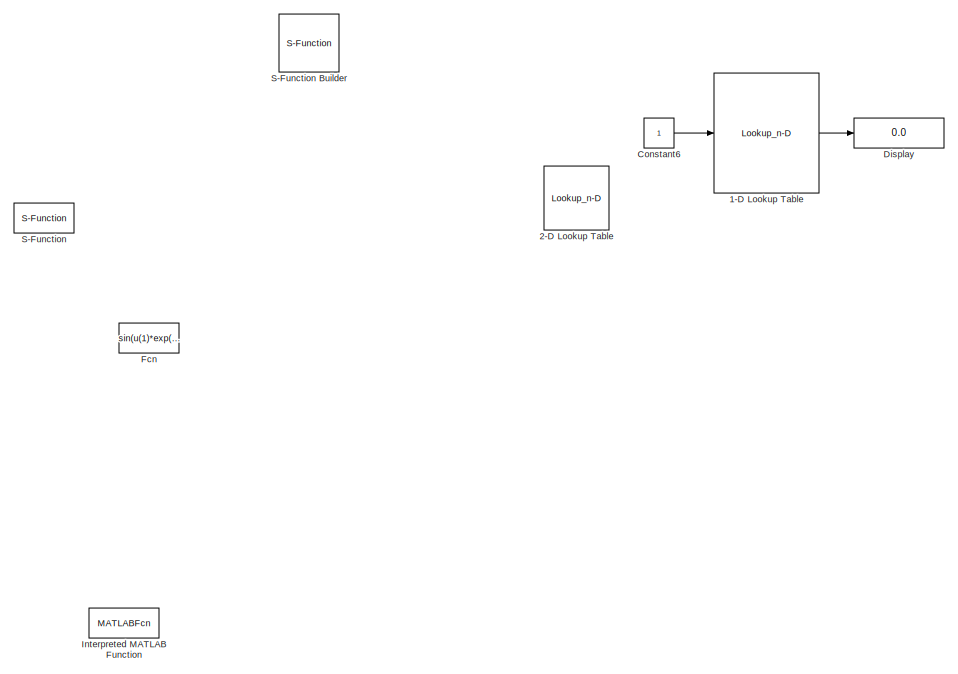
[diagram: root canvas - part 1/3, top left region]
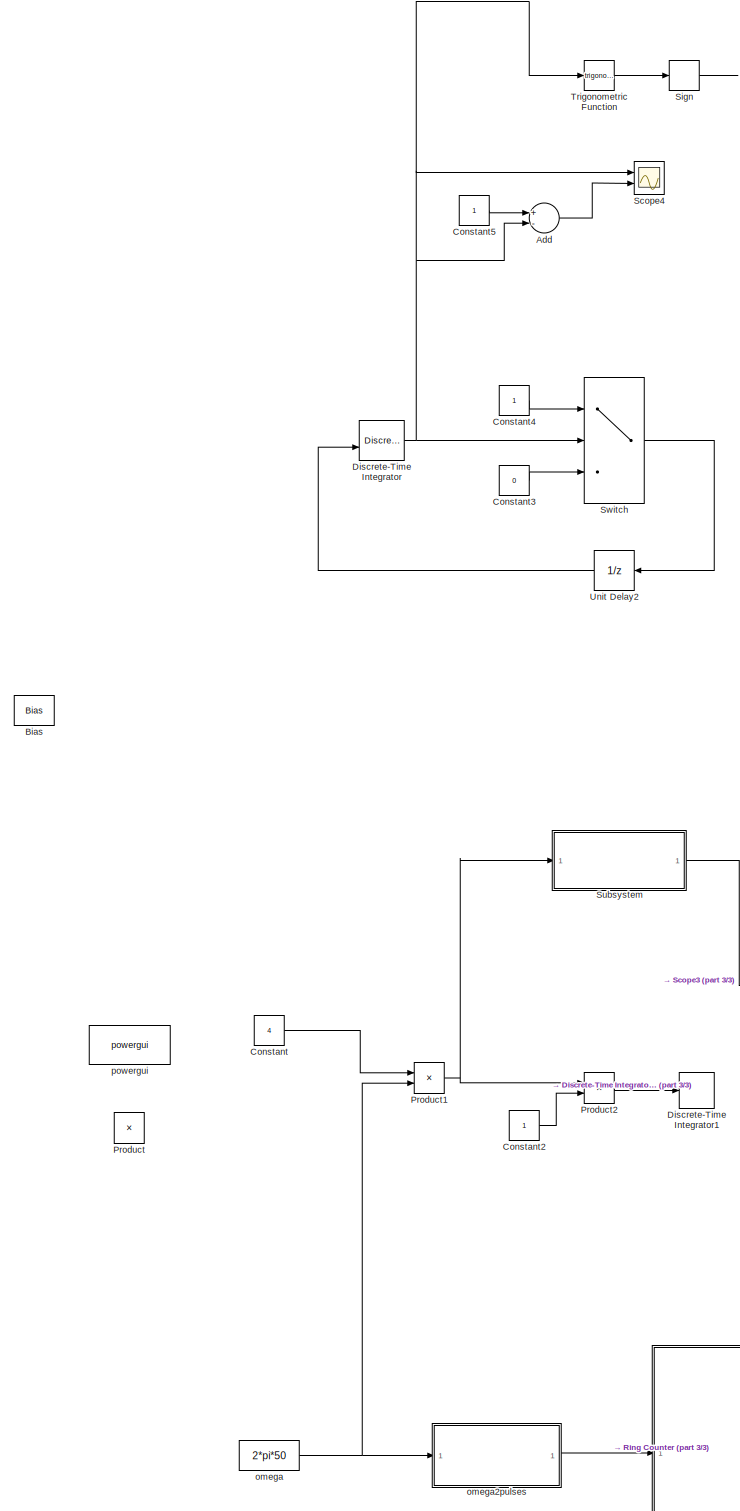
[diagram: root canvas - part 2/3, central region]
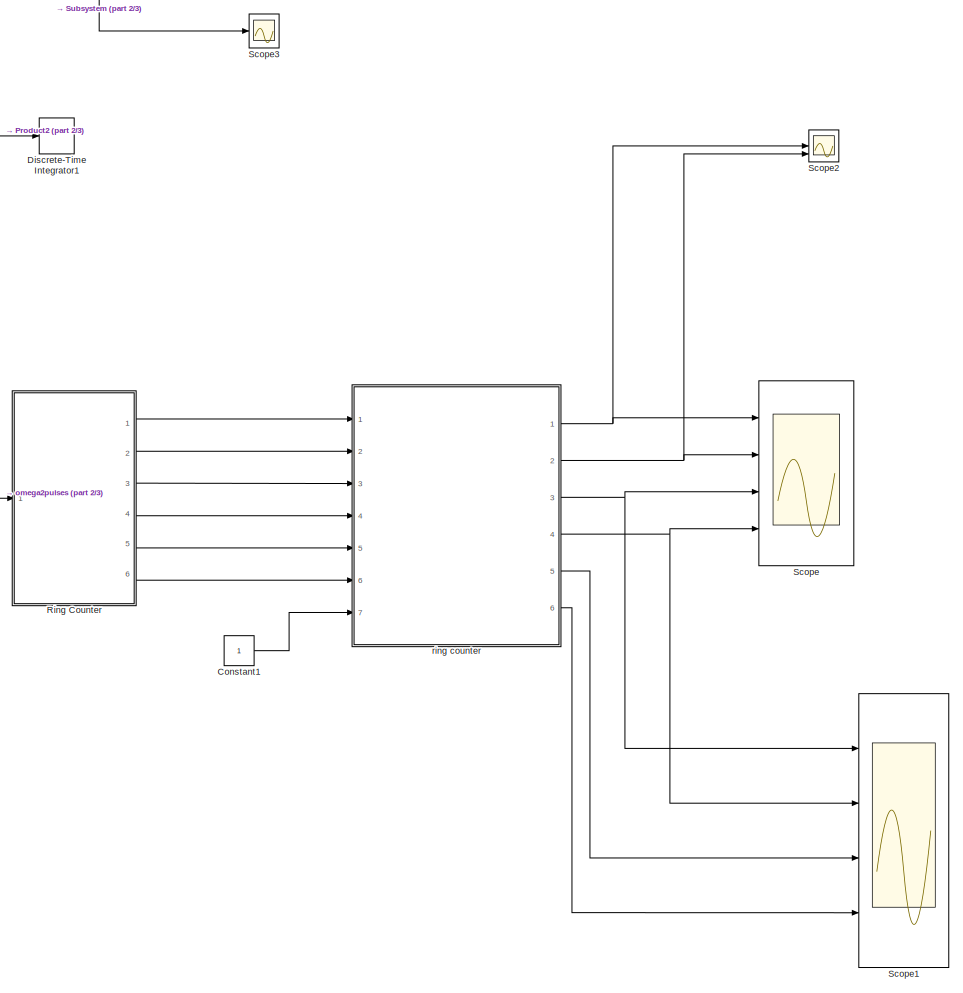
[diagram: root canvas - part 3/3, bottom right region]
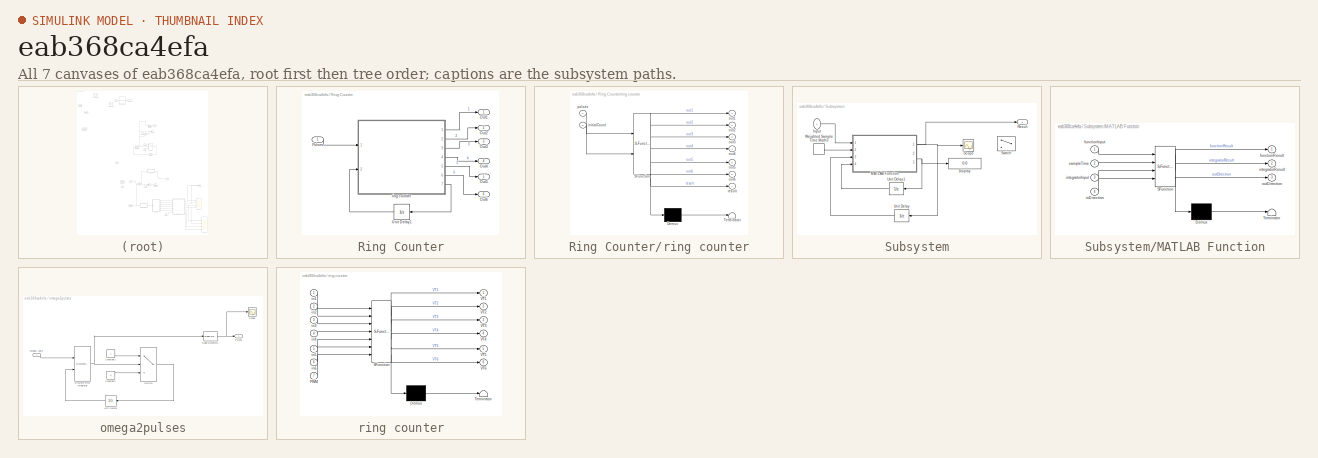
[diagram: thumbnail index - all 7 canvases of the model, root first then tree order]
MODEL slx_eab368ca4efa
KIND model
CONFIG AbsTol = auto
CONFIG EnableMultiTasking = off
CONFIG FixedStep = 2e-6
CONFIG MaxStep = 1e-4
CONFIG MinStep = auto
CONFIG RelTol = 1e-3
CONFIG SampleTimeConstraint = Unconstrained
CONFIG Solver = FixedStepDiscrete
CONFIG SolverName = FixedStepDiscrete
CONFIG StartTime = 0.0
CONFIG StopTime = 0.1
BLOCK [Lookup_n-D] 1-D Lookup Table
  BreakpointsForDimension1 = [1:5]
  Commented = through
  InternalRulePriority = Speed
  NumberOfTableDimensions = 1
  Ports = [1, 1]
  RndMeth = Simplest
  Table = [2:10]
BLOCK [Lookup_n-D] 2-D Lookup Table
  BreakpointsForDimension1 = [1:3]
  BreakpointsForDimension2 = [1:3]
  InternalRulePriority = Speed
  Ports = [2, 1]
  RndMeth = Simplest
BLOCK [Sum] Add
  InputSameDT = off
  Inputs = +-
  OutDataTypeStr = Inherit: Inherit via internal rule
  Ports = [2, 1]
  SaturateOnIntegerOverflow = off
BLOCK [Bias] Bias
  Bias = 0.0
  SaturateOnIntegerOverflow = off
BLOCK [Constant] Constant
  Value = 4
BLOCK [Constant] Constant1
BLOCK [Constant] Constant2
BLOCK [Constant] Constant3
  Value = 0
BLOCK [Constant] Constant4
BLOCK [Constant] Constant5
BLOCK [Constant] Constant6
BLOCK [DiscreteIntegrator] Discrete-Time Integrator
  ExternalReset = rising
  ICPrevOutput = DiscIntNeverNeededParam
  ICPrevScaledInput = DiscIntNeverNeededParam
  InitialConditionSetting = State (most efficient)
  Ports = [2, 1]
  SampleTime = -1
  gainval = 1
BLOCK [DiscreteIntegrator] Discrete-Time Integrator1
  ICPrevOutput = DiscIntNeverNeededParam
  ICPrevScaledInput = DiscIntNeverNeededParam
  InitialConditionSetting = State (most efficient)
  Ports = [1, 1]
  SampleTime = -1
  gainval = 1
BLOCK [Display] Display
  Decimation = 1
  Ports = [1]
BLOCK [Fcn] Fcn
  Expr = sin(u(1)*exp(2.3*(-u(2))))
BLOCK [MATLABFcn] Interpreted MATLAB Function
  Ports = [1, 1]
BLOCK [Product] Product
  InputSameDT = off
  OutDataTypeStr = Inherit: Inherit via internal rule
  Ports = [2, 1]
  RndMeth = Floor
  SaturateOnIntegerOverflow = off
BLOCK [Product] Product1
  InputSameDT = off
  OutDataTypeStr = Inherit: Inherit via internal rule
  Ports = [2, 1]
  RndMeth = Floor
  SaturateOnIntegerOverflow = off
BLOCK [Product] Product2
  InputSameDT = off
  OutDataTypeStr = Inherit: Inherit via internal rule
  Ports = [2, 1]
  RndMeth = Floor
  SaturateOnIntegerOverflow = off
BLOCK [SubSystem] Ring Counter
  Ports = [1, 6]
  RequestExecContextInheritance = off
  Variant = off
BLOCK [Outport] Ring Counter/Out1
  IconDisplay = Port number
BLOCK [Outport] Ring Counter/Out2
  IconDisplay = Port number
  Port = 2
BLOCK [Outport] Ring Counter/Out3
  IconDisplay = Port number
  Port = 3
BLOCK [Outport] Ring Counter/Out4
  IconDisplay = Port number
  Port = 4
BLOCK [Outport] Ring Counter/Out5
  IconDisplay = Port number
  Port = 5
BLOCK [Outport] Ring Counter/Out6
  IconDisplay = Port number
  Port = 6
BLOCK [Inport] Ring Counter/Pulses
  IconDisplay = Port number
BLOCK [UnitDelay] Ring Counter/Unit Delay1
  InitialCondition = 1
  InputProcessing = Elements as channels (sample based)
  SampleTime = -1
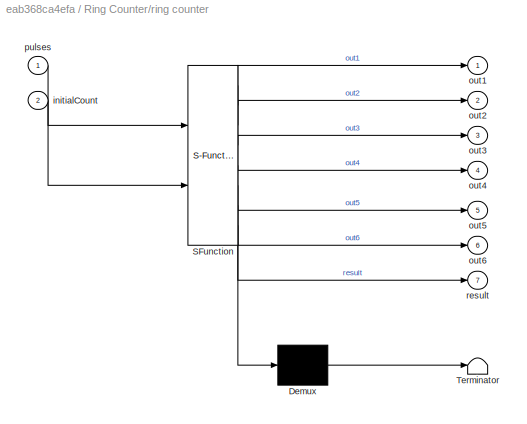
BLOCK [SubSystem] Ring Counter/ring counter
  ErrorFcn = Stateflow.Translate.translate
  PermitHierarchicalResolution = ExplicitOnly
  Ports = [2, 7]
  RequestExecContextInheritance = off
  SFBlockType = MATLAB Function
  TreatAsAtomicUnit = on
  Variant = off
BLOCK [Demux] Ring Counter/ring counter/ Demux 
  Outputs = 1
  Ports = [1, 1]
BLOCK [S-Function] Ring Counter/ring counter/ SFunction 
  EnableBusSupport = on
  FunctionName = sf_sfun
  PortCounts = [2 8]
  Ports = [2, 8]
  SFcnIsStateOwnerBlock = off
  SFunctionDeploymentMode = off
  Tag = Stateflow S-Function Logic 4
BLOCK [Terminator] Ring Counter/ring counter/ Terminator 
BLOCK [Inport] Ring Counter/ring counter/initialCount
  IconDisplay = Port number
  Port = 2
BLOCK [Outport] Ring Counter/ring counter/out1
  IconDisplay = Port number
BLOCK [Outport] Ring Counter/ring counter/out2
  IconDisplay = Port number
  Port = 2
BLOCK [Outport] Ring Counter/ring counter/out3
  IconDisplay = Port number
  Port = 3
BLOCK [Outport] Ring Counter/ring counter/out4
  IconDisplay = Port number
  Port = 4
BLOCK [Outport] Ring Counter/ring counter/out5
  IconDisplay = Port number
  Port = 5
BLOCK [Outport] Ring Counter/ring counter/out6
  IconDisplay = Port number
  Port = 6
BLOCK [Inport] Ring Counter/ring counter/pulses
  IconDisplay = Port number
BLOCK [Outport] Ring Counter/ring counter/result
  IconDisplay = Port number
  Port = 7
BLOCK [S-Function] S-Function
  EnableBusSupport = off
  Ports = [1, 1]
  SFcnIsStateOwnerBlock = off
  SFunctionDeploymentMode = off
BLOCK [S-Function] S-Function Builder
  CopyFcn = set_param(gcbh,'LinkStatus','none')
  EnableBusSupport = off
  OpenFcn = sfunctionwizard(gcbh)
  Ports = [1, 1]
  SFcnIsStateOwnerBlock = off
  SFunctionDeploymentMode = off
BLOCK [Scope] Scope
  NumInputPorts = 4
  Ports = [4]
  ScopeSpecificationString = Simulink.scopes.TimeScopeBlockCfg('CurrentConfiguration', extmgr.ConfigurationSet(extmgr.Configuration('Core','General UI',true),extmgr.Configuration('Core','Source UI',true),extmgr.Configuration('Sources','WiredSimulink',true),extmgr.Configuration('Visuals','Time Domain',true,'SerializedDisplays',{struct('MinYLimReal','-0.125','MaxYLimReal','1.125','YLabelReal','','MinYLimMag','0.00000','MaxYLimM...<+3377ch>
BLOCK [Scope] Scope1
  NumInputPorts = 4
  Ports = [4]
  ScopeSpecificationString = Simulink.scopes.TimeScopeBlockCfg('CurrentConfiguration', extmgr.ConfigurationSet(extmgr.Configuration('Core','General UI',true),extmgr.Configuration('Core','Source UI',true),extmgr.Configuration('Sources','WiredSimulink',true,'DataLoggingVariableName','ScopeData1'),extmgr.Configuration('Visuals','Time Domain',true,'SerializedDisplays',{struct('MinYLimReal','-0.125','MaxYLimReal','1.125','YLabelRe...<+3415ch>
BLOCK [Scope] Scope2
  NumInputPorts = 3
  Ports = [3]
  ScopeSpecificationString = Simulink.scopes.TimeScopeBlockCfg('CurrentConfiguration', extmgr.ConfigurationSet(extmgr.Configuration('Core','General UI',true),extmgr.Configuration('Core','Source UI',true),extmgr.Configuration('Sources','WiredSimulink',true,'DataLoggingVariableName','ScopeData3'),extmgr.Configuration('Visuals','Time Domain',true,'SerializedDisplays',{struct('MinYLimReal','-0.125','MaxYLimReal','1.125','YLabelRe...<+2744ch>
BLOCK [Scope] Scope3
  NumInputPorts = 1
  Ports = [1]
  ScopeSpecificationString = Simulink.scopes.TimeScopeBlockCfg('CurrentConfiguration', extmgr.ConfigurationSet(extmgr.Configuration('Core','General UI',true),extmgr.Configuration('Core','Source UI',true),extmgr.Configuration('Sources','WiredSimulink',true,'DataLoggingVariableName','ScopeData1'),extmgr.Configuration('Visuals','Time Domain',true,'SerializedDisplays',{struct('MinYLimReal','9.99654','MaxYLimReal','10.00199','YLab...<+1460ch>
BLOCK [Scope] Scope4
  NumInputPorts = 2
  Ports = [2]
  ScopeSpecificationString = Simulink.scopes.TimeScopeBlockCfg('CurrentConfiguration', extmgr.ConfigurationSet(extmgr.Configuration('Core','General UI',true),extmgr.Configuration('Core','Source UI',true),extmgr.Configuration('Sources','WiredSimulink',true,'DataLoggingVariableName','ScopeData5'),extmgr.Configuration('Visuals','Time Domain',true,'SerializedDisplays',{struct('MinYLimReal','-0.18426','MaxYLimReal','1.18426','YLab...<+1464ch>
BLOCK [Signum] Sign
BLOCK [SubSystem] Subsystem
  Ports = [1, 1]
  RequestExecContextInheritance = off
  Variant = off
BLOCK [Display] Subsystem/Display
  Decimation = 1
  Ports = [1]
BLOCK [Inport] Subsystem/Input
  IconDisplay = Port number
BLOCK [SubSystem] Subsystem/MATLAB Function
  ErrorFcn = Stateflow.Translate.translate
  PermitHierarchicalResolution = ExplicitOnly
  Ports = [4, 3]
  RequestExecContextInheritance = off
  SFBlockType = MATLAB Function
  TreatAsAtomicUnit = on
  Variant = off
BLOCK [Demux] Subsystem/MATLAB Function/ Demux 
  Outputs = 1
  Ports = [1, 1]
BLOCK [S-Function] Subsystem/MATLAB Function/ SFunction 
  EnableBusSupport = on
  FunctionName = sf_sfun
  PortCounts = [4 4]
  Ports = [4, 4]
  SFcnIsStateOwnerBlock = off
  SFunctionDeploymentMode = off
  Tag = Stateflow S-Function Logic 2
BLOCK [Terminator] Subsystem/MATLAB Function/ Terminator 
BLOCK [Inport] Subsystem/MATLAB Function/functionInput
  IconDisplay = Port number
BLOCK [Outport] Subsystem/MATLAB Function/functionResult
  IconDisplay = Port number
BLOCK [Inport] Subsystem/MATLAB Function/inDirection
  IconDisplay = Port number
  Port = 4
BLOCK [Inport] Subsystem/MATLAB Function/integratorInput
  IconDisplay = Port number
  Port = 3
BLOCK [Outport] Subsystem/MATLAB Function/integratorResult
  IconDisplay = Port number
  Port = 2
BLOCK [Outport] Subsystem/MATLAB Function/outDirection
  IconDisplay = Port number
  Port = 3
BLOCK [Inport] Subsystem/MATLAB Function/sampleTime
  IconDisplay = Port number
  Port = 2
BLOCK [Outport] Subsystem/Result
  IconDisplay = Port number
BLOCK [Scope] Subsystem/Scope
  NumInputPorts = 1
  Ports = [1]
  ScopeSpecificationString = Simulink.scopes.TimeScopeBlockCfg('CurrentConfiguration', extmgr.ConfigurationSet(extmgr.Configuration('Core','General UI',true),extmgr.Configuration('Core','Source UI',true),extmgr.Configuration('Sources','WiredSimulink',true,'DataLoggingVariableName','ScopeData2'),extmgr.Configuration('Visuals','Time Domain',true,'SerializedDisplays',{struct('MinYLimReal','-0.00099','MaxYLimReal','0.00895','YLab...<+1391ch>
BLOCK [Switch] Subsystem/Switch
  InputSameDT = off
  SaturateOnIntegerOverflow = off
  Threshold = pi/3
BLOCK [UnitDelay] Subsystem/Unit Delay
  InputProcessing = Elements as channels (sample based)
  SampleTime = -1
BLOCK [UnitDelay] Subsystem/Unit Delay1
  InputProcessing = Elements as channels (sample based)
  SampleTime = -1
BLOCK [SampleTimeMath] Subsystem/Weighted Sample Time Math3
  TsampMathOp = Ts Only
BLOCK [Switch] Switch
  InputSameDT = off
  SaturateOnIntegerOverflow = off
  Threshold = pi/3
BLOCK [Trigonometry] Trigonometric Function
  Ports = [1, 1]
BLOCK [UnitDelay] Unit Delay2
  InputProcessing = Elements as channels (sample based)
  SampleTime = -1
BLOCK [Constant] omega
  Value = 2*pi*50
BLOCK [SubSystem] omega2pulses
  Ports = [1, 1]
  RequestExecContextInheritance = off
  Variant = off
BLOCK [Constant] omega2pulses/Constant1
  Value = 0
BLOCK [Constant] omega2pulses/Constant2
BLOCK [DiscreteIntegrator] omega2pulses/Discrete-Time Integrator
  ExternalReset = rising
  ICPrevOutput = DiscIntNeverNeededParam
  ICPrevScaledInput = DiscIntNeverNeededParam
  InitialConditionSetting = State (most efficient)
  Ports = [2, 1]
  SampleTime = -1
BLOCK [Reference] omega2pulses/Edge Detector1  REF=powerlib_meascontrol/Logic/Edge Detector
  Ports = [1, 1]
  SourceBlock = powerlib_meascontrol/Logic/Edge Detector
  SourceProductBaseCode = PS
  SourceProductName = Simscape Power Systems
  SourceType = Edge Detector
BLOCK [Outport] omega2pulses/Pulses
  IconDisplay = Port number
BLOCK [Scope] omega2pulses/Scope
  NumInputPorts = 1
  Ports = [1]
  ScopeSpecificationString = Simulink.scopes.TimeScopeBlockCfg('CurrentConfiguration', extmgr.ConfigurationSet(extmgr.Configuration('Core','General UI',true),extmgr.Configuration('Core','Source UI',true),extmgr.Configuration('Sources','WiredSimulink',true,'DataLoggingVariableName','ScopeData2'),extmgr.Configuration('Visuals','Time Domain',true,'SerializedDisplays',{struct('MinYLimReal','-0.125','MaxYLimReal','1.125','YLabelRe...<+1747ch>
BLOCK [Switch] omega2pulses/Switch
  InputSameDT = off
  SaturateOnIntegerOverflow = off
  Threshold = pi/3
BLOCK [UnitDelay] omega2pulses/Unit Delay2
  InputProcessing = Elements as channels (sample based)
  SampleTime = -1
BLOCK [Inport] omega2pulses/omega, rad//s
  IconDisplay = Port number
BLOCK [Reference] powergui  REF=powerlib/powergui
  Ports = []
  Priority = 1
  SourceBlock = powerlib/powergui
  SourceProductBaseCode = PS
  SourceProductName = Simscape Power Systems
  SourceType = PSB option menu block
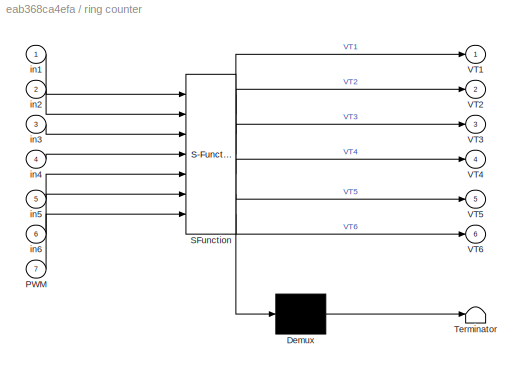
BLOCK [SubSystem] ring counter
  ErrorFcn = Stateflow.Translate.translate
  PermitHierarchicalResolution = ExplicitOnly
  Ports = [7, 6]
  RequestExecContextInheritance = off
  SFBlockType = MATLAB Function
  TreatAsAtomicUnit = on
  Variant = off
BLOCK [Demux] ring counter/ Demux 
  Outputs = 1
  Ports = [1, 1]
BLOCK [S-Function] ring counter/ SFunction 
  EnableBusSupport = on
  FunctionName = sf_sfun
  PortCounts = [7 7]
  Ports = [7, 7]
  SFcnIsStateOwnerBlock = off
  SFunctionDeploymentMode = off
  Tag = Stateflow S-Function Logic 1
BLOCK [Terminator] ring counter/ Terminator 
BLOCK [Inport] ring counter/PWM
  IconDisplay = Port number
  Port = 7
BLOCK [Outport] ring counter/VT1
  IconDisplay = Port number
BLOCK [Outport] ring counter/VT2
  IconDisplay = Port number
  Port = 2
BLOCK [Outport] ring counter/VT3
  IconDisplay = Port number
  Port = 3
BLOCK [Outport] ring counter/VT4
  IconDisplay = Port number
  Port = 4
BLOCK [Outport] ring counter/VT5
  IconDisplay = Port number
  Port = 5
BLOCK [Outport] ring counter/VT6
  IconDisplay = Port number
  Port = 6
BLOCK [Inport] ring counter/in1
  IconDisplay = Port number
BLOCK [Inport] ring counter/in2
  IconDisplay = Port number
  Port = 2
BLOCK [Inport] ring counter/in3
  IconDisplay = Port number
  Port = 3
BLOCK [Inport] ring counter/in4
  IconDisplay = Port number
  Port = 4
BLOCK [Inport] ring counter/in5
  IconDisplay = Port number
  Port = 5
BLOCK [Inport] ring counter/in6
  IconDisplay = Port number
  Port = 6
LINE 1-D Lookup Table:1 -> Display:1
LINE Add:1 -> Scope4:2
LINE Constant1:1 -> ring counter:7
LINE Constant2:1 -> Product2:2
LINE Constant3:1 -> Switch:3
LINE Constant4:1 -> Switch:1
LINE Constant5:1 -> Add:1
LINE Constant6:1 -> 1-D Lookup Table:1
LINE Constant:1 -> Product1:1
NET Discrete-Time Integrator:1 -> Add:2, Scope4:1, Switch:2, Trigonometric Function:1
NET Product1:1 -> Product2:1, Subsystem:1
LINE Product2:1 -> Discrete-Time Integrator1:1
LINE Ring Counter/Pulses:1 -> Ring Counter/ring counter:1
LINE Ring Counter/Unit Delay1:1 -> Ring Counter/ring counter:2
LINE Ring Counter/ring counter:1 -> Ring Counter/Out1:1
LINE Ring Counter/ring counter:2 -> Ring Counter/Out2:1
LINE Ring Counter/ring counter:3 -> Ring Counter/Out3:1
LINE Ring Counter/ring counter:4 -> Ring Counter/Out4:1
LINE Ring Counter/ring counter:5 -> Ring Counter/Out5:1
LINE Ring Counter/ring counter:6 -> Ring Counter/Out6:1
LINE Ring Counter/ring counter:7 -> Ring Counter/Unit Delay1:1
LINE Ring Counter:1 -> ring counter:1
LINE Ring Counter:2 -> ring counter:2
LINE Ring Counter:3 -> ring counter:3
LINE Ring Counter:4 -> ring counter:4
LINE Ring Counter:5 -> ring counter:5
LINE Ring Counter:6 -> ring counter:6
LINE Subsystem/Input:1 -> Subsystem/MATLAB Function:1
LINE Subsystem/MATLAB Function:1 -> Subsystem/Result:1
NET Subsystem/MATLAB Function:2 -> Subsystem/Scope:1, Subsystem/Unit Delay:1
NET Subsystem/MATLAB Function:3 -> Subsystem/Display:1, Subsystem/Unit Delay1:1
LINE Subsystem/Unit Delay1:1 -> Subsystem/MATLAB Function:4
LINE Subsystem/Unit Delay:1 -> Subsystem/MATLAB Function:3
LINE Subsystem/Weighted Sample Time Math3:1 -> Subsystem/MATLAB Function:2
LINE Subsystem:1 -> Scope3:1
LINE Switch:1 -> Unit Delay2:1
LINE Trigonometric Function:1 -> Sign:1
LINE Unit Delay2:1 -> Discrete-Time Integrator:2
LINE omega2pulses/Constant1:1 -> omega2pulses/Switch:3
LINE omega2pulses/Constant2:1 -> omega2pulses/Switch:1
NET omega2pulses/Discrete-Time Integrator:1 -> omega2pulses/Edge Detector1:1, omega2pulses/Switch:2
NET omega2pulses/Edge Detector1:1 -> omega2pulses/Pulses:1, omega2pulses/Scope:1
LINE omega2pulses/Switch:1 -> omega2pulses/Unit Delay2:1
LINE omega2pulses/Unit Delay2:1 -> omega2pulses/Discrete-Time Integrator:2
LINE omega2pulses/omega, rad//s:1 -> omega2pulses/Discrete-Time Integrator:1
LINE omega2pulses:1 -> Ring Counter:1
NET omega:1 -> Product1:2, omega2pulses:1
NET ring counter:1 -> Scope2:2, Scope:1
NET ring counter:2 -> Scope2:3, Scope:2
NET ring counter:3 -> Scope1:1, Scope:3
NET ring counter:4 -> Scope1:2, Scope:4
LINE ring counter:5 -> Scope1:3
LINE ring counter:6 -> Scope1:4
note: NET lines group one-source signal fan-out (src -> all destinations, sorted); 1:1 wires keep LINE
CHART ring counter states=1 transitions=1
  STATE_LABEL 'eML_blk_kernel()'
  STATE_LABEL 'SCRIPT:\nfunction [VT1, VT2, VT3, VT4, VT5, VT6] = fcn(in1, in2, in3, in4, in5, in6, PWM)\n\nVT1 = in1 | (in2 & PWM) | in3 |(in5 & (~PWM));\nVT2 = (in2 & (~PWM)) | in4 | (in5 & PWM) | in6;\n\nVT3 = in3 | (in4 & PWM) | in5 |(in1 & (~PWM));\nVT4 = (in4 & (~PWM)) | in6 | (in1 & PWM) | in2;\n\nVT5 = in5 | (in6 & PWM) | in1 |(in3 & (~PWM));\nVT6 = (in6 & (~PWM)) | in2 | (in3 & PWM) | in4;\n\n\n\nend\n\n'
CHART Subsystem/MATLAB Function states=1 transitions=1
  STATE_LABEL 'eML_blk_kernel()'
  STATE_LABEL 'SCRIPT:\nfunction [functionResult, integratorResult, outDirection]= fcn(functionInput, sampleTime, integratorInput, inDirection)\nif inDirection == 0\n    integratorResult = integratorInput + sampleTime;\nelseif inDirection == 1\n    integratorResult = integratorInput - sampleTime;\nelse\n    integratorResult = integratorInput;\nend\n\nfunctionResult = functionInput * integratorResult;\n\nif functionResult >=...<+125ch>'
CHART Ring Counter/ring counter states=1 transitions=1
  STATE_LABEL 'eML_blk_kernel()'
  STATE_LABEL 'SCRIPT:\nfunction [out1, out2, out3, out4, out5, out6, result] = fcn(pulses, initialCount)\nif pulses == 1 \n   result = initialCount + 1;\n   if result >= 7\n       result = 1;\n   end        \nelse   \n   result = initialCount;\nend\n\n%out1\nif result == 1\n       out1 = 1;\nelse\n       out1 = 0;\nend\n%%out2\nif result == 2\n       out2 = 1;\nelse\n       out2 = 0;\nend\n%out3\nif result == 3\n       out3 = 1;\nelse\n ...<+220ch>'
